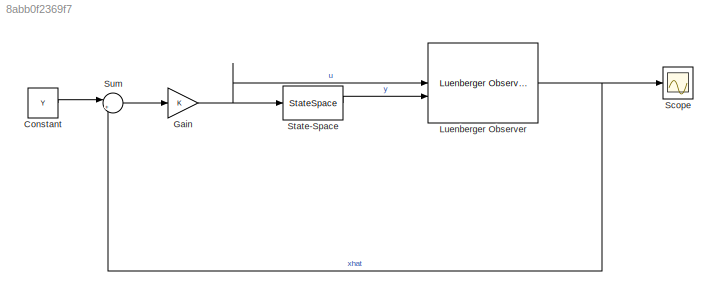
MODEL slx_8abb0f2369f7
KIND model
CONFIG AbsTol = auto
CONFIG EnableMultiTasking = off
CONFIG FixedStep = auto
CONFIG MaxStep = auto
CONFIG MinStep = auto
CONFIG RelTol = 1e-3
CONFIG SampleTimeConstraint = Unconstrained
CONFIG SolverName = VariableStepAuto
CONFIG StartTime = 0.0
CONFIG StopTime = 10.0
BLOCK [Constant] Constant
  Value = Y
BLOCK [Gain] Gain
  Gain = K
  Multiplication = Matrix(K*u)
BLOCK [Reference] Luenberger Observer  REF=eeLuenbergerObserver/Luenberger Observer
  SourceBlock = eeLuenbergerObserver/Luenberger Observer
  SourceType = Luenberger Observer
BLOCK [Scope] Scope
  Floating = off
  NumInputPorts = 1
  ScopeSpecificationString = Simulink.scopes.TimeScopeBlockCfg('CurrentConfiguration', extmgr.ConfigurationSet(extmgr.Configuration('Core','General UI',true),extmgr.Configuration('Core','Source UI',true),extmgr.Configuration('Sources','WiredSimulink',true),extmgr.Configuration('Visuals','Time Domain',true,'SerializedDisplays',{struct('MinYLimReal','-134.35172','MaxYLimReal','131.56496','YLabelReal','','MinYLimMag',' 0.00000',...<+1537ch>
BLOCK [StateSpace] State-Space
  A = A
  B = b
  C = C
  D = D
  InitialCondition = x0
BLOCK [Sum] Sum
  Inputs = |+-
LINE Constant:1 -> Sum:1
NET Gain:1 -> Luenberger Observer:1, State-Space:1
NET Luenberger Observer:1 -> Scope:1, Sum:2
LINE State-Space:1 -> Luenberger Observer:2
LINE Sum:1 -> Gain:1
note: NET lines group one-source signal fan-out (src -> all destinations, sorted); 1:1 wires keep LINE
